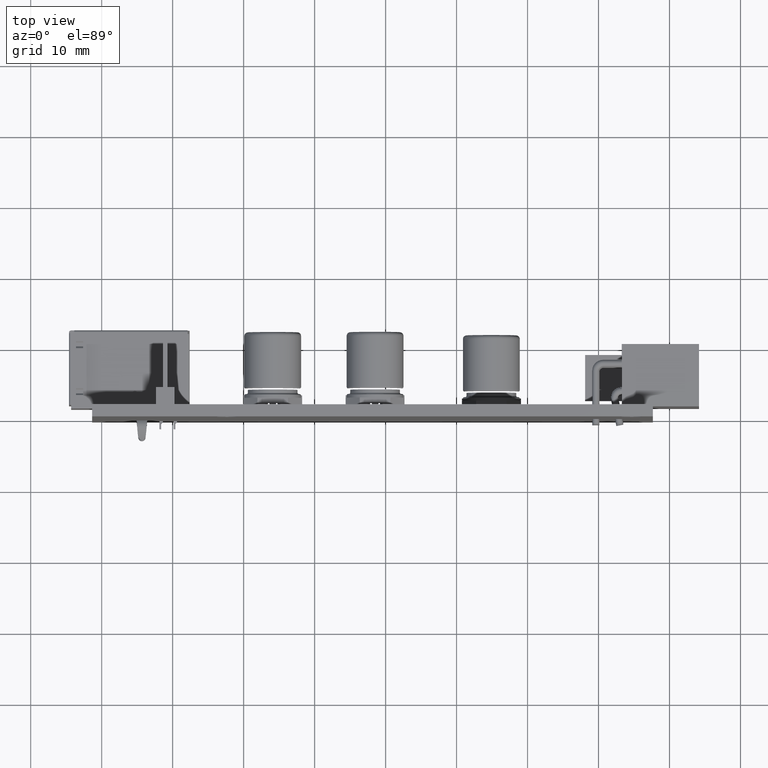
[diagram: clean part render]
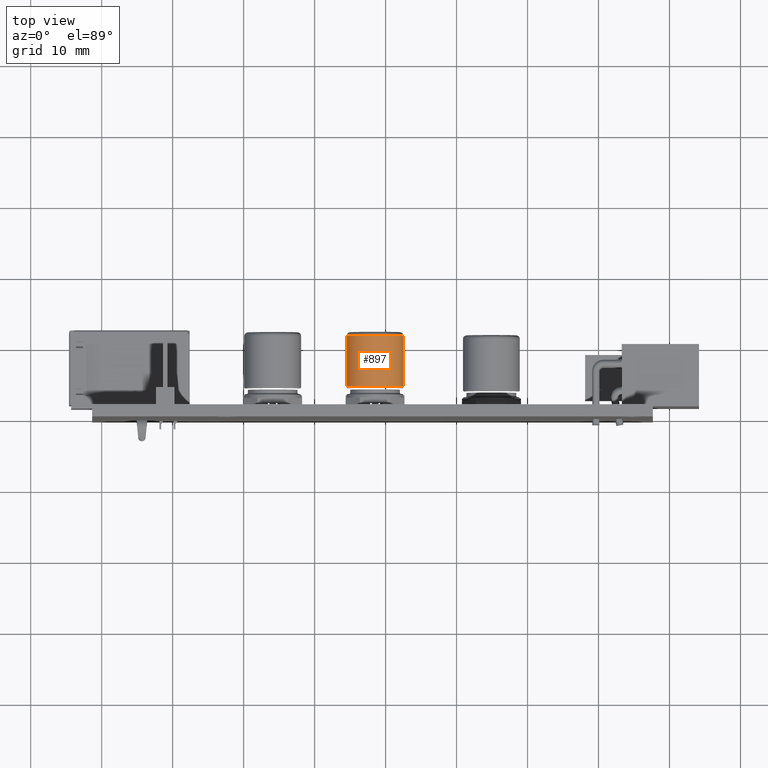
[diagram: same view with one face highlighted and labeled with its STEP entity id]
A machine part, top view. The second image highlights one B-rep face of the part: STEP entity #897.
In plain terms, the highlighted cylindrical surface (edge-blend (fillet) strip) has radius 4 mm, axis along (0, -1, 0).
Its self-contained STEP definition (entity closure, byte-faithful):
#565 = VECTOR ( 'NONE', #8959, 1000.000000000000000 ) ;
#897 = ADVANCED_FACE ( 'NONE', ( #9823 ), #6826, .T. ) ;
#1377 = LINE ( 'NONE', #10342, #14493 ) ;
#1424 = VERTEX_POINT ( 'NONE', #8474 ) ;
#2475 = EDGE_CURVE ( 'NONE', #6455, #1424, #10557, .T. ) ;
#2713 = DIRECTION ( 'NONE',  ( 1.000000000000000000, 0.0000000000000000000, 0.0000000000000000000 ) ) ;
#3684 = CARTESIAN_POINT ( 'NONE',  ( -1.483054416564259800, 4.276700930004712300, -17.58849731709261700 ) ) ;
#3923 = CARTESIAN_POINT ( 'NONE',  ( 2.516945583435740400, 11.97670093000471400, -17.58849731709261700 ) ) ;
#5462 = ORIENTED_EDGE ( 'NONE', *, *, #11015, .T. ) ;
#6115 = EDGE_LOOP ( 'NONE', ( #15946, #5462, #12871, #13592 ) ) ;
#6365 = DIRECTION ( 'NONE',  ( 1.000000000000000000, 0.0000000000000000000, 0.0000000000000000000 ) ) ;
#6455 = VERTEX_POINT ( 'NONE', #9662 ) ;
#6700 = VERTEX_POINT ( 'NONE', #15242 ) ;
#6826 = CYLINDRICAL_SURFACE ( 'NONE', #14913, 4.000000000000000000 ) ;
#8309 = DIRECTION ( 'NONE',  ( -1.000000000000000000, 0.0000000000000000000, 0.0000000000000000000 ) ) ;
#8474 = CARTESIAN_POINT ( 'NONE',  ( 2.516945583435740400, 4.276700930004712300, -17.58849731709261700 ) ) ;
#8959 = DIRECTION ( 'NONE',  ( 0.0000000000000000000, -1.000000000000000000, 0.0000000000000000000 ) ) ;
#9135 = CIRCLE ( 'NONE', #10130, 4.000000000000000000 ) ;
#9366 = CIRCLE ( 'NONE', #15458, 4.000000000000000000 ) ;
#9464 = VERTEX_POINT ( 'NONE', #13988 ) ;
#9662 = CARTESIAN_POINT ( 'NONE',  ( 2.516945583435740400, 11.47670093000471200, -17.58849731709261700 ) ) ;
#9823 = FACE_OUTER_BOUND ( 'NONE', #6115, .T. ) ;
#10130 = AXIS2_PLACEMENT_3D ( 'NONE', #15508, #14296, #2713 ) ;
#10342 = CARTESIAN_POINT ( 'NONE',  ( -5.483054416564259600, 11.97670093000471400, -17.58849731709261700 ) ) ;
#10557 = LINE ( 'NONE', #3923, #565 ) ;
#11015 = EDGE_CURVE ( 'NONE', #6455, #6700, #9135, .T. ) ;
#12103 = CARTESIAN_POINT ( 'NONE',  ( -1.483054416564259800, 11.97670093000471400, -17.58849731709261700 ) ) ;
#12871 = ORIENTED_EDGE ( 'NONE', *, *, #13729, .T. ) ;
#12879 = DIRECTION ( 'NONE',  ( 0.0000000000000000000, -1.000000000000000000, 0.0000000000000000000 ) ) ;
#13556 = EDGE_CURVE ( 'NONE', #9464, #1424, #9366, .T. ) ;
#13592 = ORIENTED_EDGE ( 'NONE', *, *, #13556, .T. ) ;
#13729 = EDGE_CURVE ( 'NONE', #6700, #9464, #1377, .T. ) ;
#13988 = CARTESIAN_POINT ( 'NONE',  ( -5.483054416564259600, 4.276700930004712300, -17.58849731709261700 ) ) ;
#14296 = DIRECTION ( 'NONE',  ( -0.0000000000000000000, -1.000000000000000000, -0.0000000000000000000 ) ) ;
#14493 = VECTOR ( 'NONE', #12879, 1000.000000000000000 ) ;
#14633 = DIRECTION ( 'NONE',  ( 0.0000000000000000000, -1.000000000000000000, 0.0000000000000000000 ) ) ;
#14913 = AXIS2_PLACEMENT_3D ( 'NONE', #12103, #14633, #8309 ) ;
#15090 = DIRECTION ( 'NONE',  ( 0.0000000000000000000, 1.000000000000000000, 0.0000000000000000000 ) ) ;
#15242 = CARTESIAN_POINT ( 'NONE',  ( -5.483054416564259600, 11.47670093000471200, -17.58849731709261700 ) ) ;
#15458 = AXIS2_PLACEMENT_3D ( 'NONE', #3684, #15090, #6365 ) ;
#15508 = CARTESIAN_POINT ( 'NONE',  ( -1.483054416564259800, 11.47670093000471200, -17.58849731709261700 ) ) ;
#15946 = ORIENTED_EDGE ( 'NONE', *, *, #2475, .F. ) ;